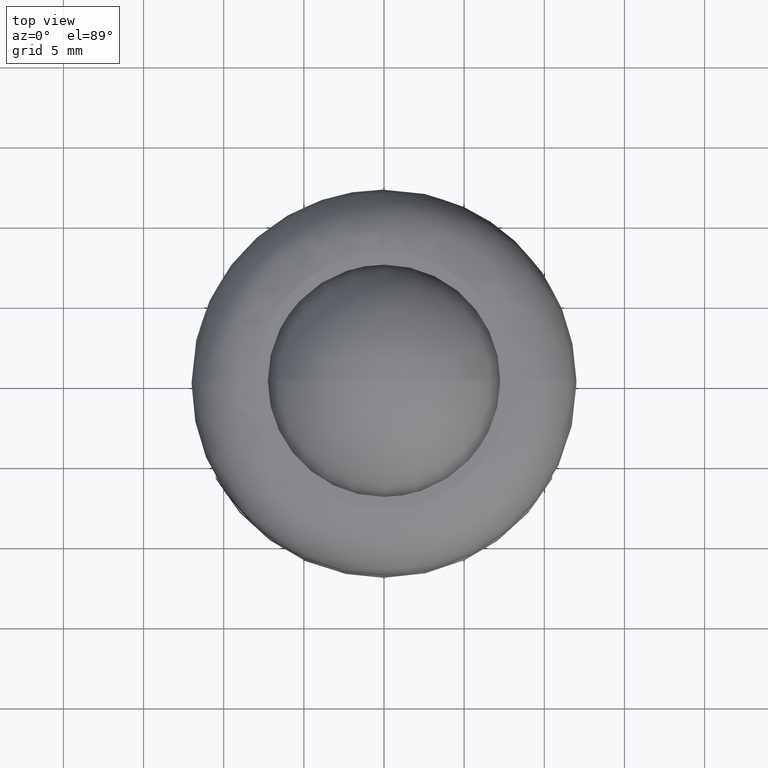
[diagram: clean part render]
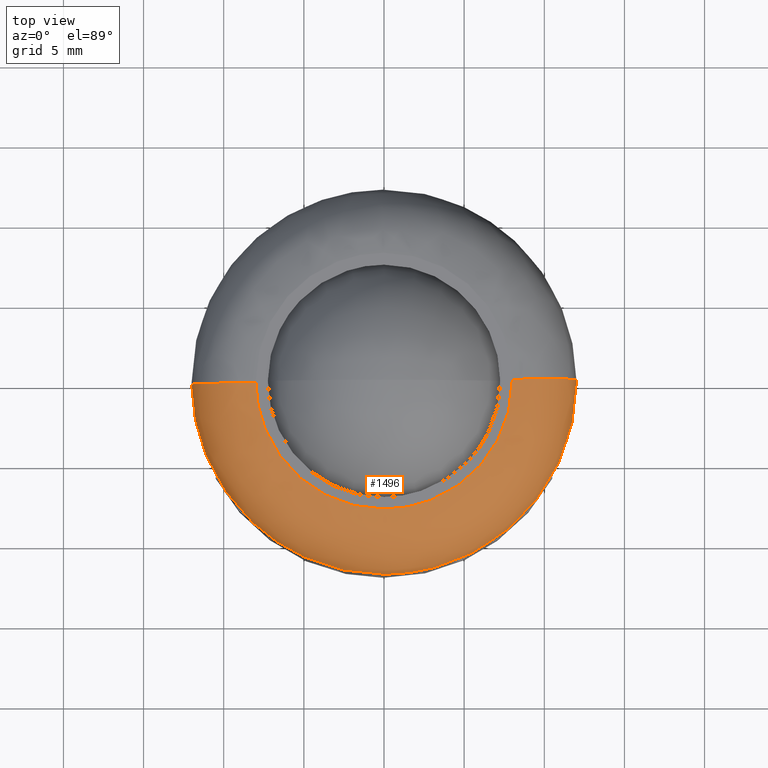
[diagram: same view with one face highlighted and labeled with its STEP entity id]
A machine part, top view. The second image highlights one B-rep face of the part: STEP entity #1496.
In plain terms, the highlighted face is a freeform B-spline surface patch.
Its self-contained STEP definition (entity closure, byte-faithful):
#1086=CARTESIAN_POINT('',(-7.999368353823391,-0.100528319104922,12.0));
#1087=VERTEX_POINT('',#1086);
#1095=CARTESIAN_POINT('',(0.050258764031957,-7.999842126982739,12.0));
#1096=VERTEX_POINT('',#1095);
#1097=CARTESIAN_POINT('',(0.050258764031957,-7.999842126982739,12.0));
#1098=CARTESIAN_POINT('',(-0.291969692002958,-8.002001624722414,12.0));
#1099=CARTESIAN_POINT('',(-1.009308690898889,-7.960417831828395,12.000000000000011));
#1100=CARTESIAN_POINT('',(-2.147877280366271,-7.738725314529022,11.999999999999950));
#1101=CARTESIAN_POINT('',(-3.240442216491117,-7.345918888468682,12.000000000000160));
#1102=CARTESIAN_POINT('',(-4.291294910956784,-6.782969535053945,11.999999999999790));
#1103=CARTESIAN_POINT('',(-5.319696521452464,-6.029499938841547,12.000000000000171));
#1104=CARTESIAN_POINT('',(-6.237553441284248,-5.072000818602808,12.000000000000030));
#1105=CARTESIAN_POINT('',(-6.895158595428486,-4.096394659710724,11.999999999999940));
#1106=CARTESIAN_POINT('',(-7.376359571363047,-3.151259520485609,12.000000000000190));
#1107=CARTESIAN_POINT('',(-7.680921348950090,-2.305472377029266,11.999999999999950));
#1108=CARTESIAN_POINT('',(-7.926310511984541,-1.240471974038401,12.0));
#1109=CARTESIAN_POINT('',(-7.993671507442953,-0.556807913680777,12.000000000000011));
#1110=CARTESIAN_POINT('',(-7.999368353823391,-0.100528319104922,12.0));
#1111=B_SPLINE_CURVE_WITH_KNOTS('',3,(#1097,#1098,#1099,#1100,#1101,#1102,#1103,#1104,#1105,#1106,#1107,#1108,#1109,#1110),.UNSPECIFIED.,.F.,.U.,(4,1,1,1,1,1,1,1,1,1,1,4),(0.000000032343642,1.026706891044071,2.151201481715830,3.471268425500442,4.497982534330774,5.720274910603725,7.284759213213086,8.458154736016571,9.240414605485842,10.462700141200481,11.147179417200739,12.516118221549579),.UNSPECIFIED.);
#1112=EDGE_CURVE('',#1096,#1087,#1111,.T.);
#1114=CARTESIAN_POINT('',(8.0,0.0,12.0));
#1115=VERTEX_POINT('',#1114);
#1116=CARTESIAN_POINT('',(8.0,0.0,12.0));
#1117=CARTESIAN_POINT('',(8.000007600070280,-0.342235364035424,12.0));
#1118=CARTESIAN_POINT('',(7.952872440890642,-1.075597087077423,12.000000000000011));
#1119=CARTESIAN_POINT('',(7.691091632250863,-2.356401361394689,11.999999999999959));
#1120=CARTESIAN_POINT('',(7.171812730929088,-3.649187877849604,12.000000000000030));
#1121=CARTESIAN_POINT('',(6.450150170503080,-4.778970361939138,11.999999999999959));
#1122=CARTESIAN_POINT('',(5.660638851825850,-5.693878554737453,12.000000000000011));
#1123=CARTESIAN_POINT('',(4.831300056676323,-6.409815986532683,12.000000000000030));
#1124=CARTESIAN_POINT('',(3.897673977444101,-7.010298109555170,11.999999999999940));
#1125=CARTESIAN_POINT('',(2.807380275182842,-7.532101224692839,12.000000000000080));
#1126=CARTESIAN_POINT('',(1.500126976867151,-7.905486006509801,12.0));
#1127=CARTESIAN_POINT('',(0.506562304105791,-7.997003475008324,11.999999999999920));
#1128=CARTESIAN_POINT('',(0.050258764031957,-7.999842126982739,12.0));
#1129=B_SPLINE_CURVE_WITH_KNOTS('',3,(#1116,#1117,#1118,#1119,#1120,#1121,#1122,#1123,#1124,#1125,#1126,#1127,#1128),.UNSPECIFIED.,.F.,.U.,(4,1,1,1,1,1,1,1,1,1,4),(0.000000032334984,1.026707938994770,2.200099898308638,3.911291691568414,5.182463448415021,6.209194250977256,7.529226238229244,8.458163369469572,9.533772472657008,11.147190795456609,12.516130997089990),.UNSPECIFIED.);
#1130=EDGE_CURVE('',#1115,#1096,#1129,.T.);
#1132=CARTESIAN_POINT('',(7.999368353823392,0.100528319104922,12.0));
#1133=VERTEX_POINT('',#1132);
#1134=CARTESIAN_POINT('',(7.999368353823392,0.100528319104922,12.0));
#1135=CARTESIAN_POINT('',(8.0,0.0,12.0));
#1136=QUASI_UNIFORM_CURVE('',1,(#1134,#1135),.UNSPECIFIED.,.F.,.U.);
#1137=EDGE_CURVE('',#1133,#1115,#1136,.T.);
#1318=CARTESIAN_POINT('',(-11.999052530445731,-0.150792478605392,8.000000000027146));
#1319=VERTEX_POINT('',#1318);
#1327=CARTESIAN_POINT('',(-7.999368353823391,-0.100528319104922,12.0));
#1328=CARTESIAN_POINT('',(-8.342962410215186,-0.104846276647689,12.000095323297501));
#1329=CARTESIAN_POINT('',(-8.866461927407165,-0.111425111894558,11.932102792538100));
#1330=CARTESIAN_POINT('',(-9.658972357540556,-0.121384615924115,11.664874699634479));
#1331=CARTESIAN_POINT('',(-10.263017489297569,-0.128975670495285,11.327558966083330));
#1332=CARTESIAN_POINT('',(-10.802763836428390,-0.135758680174363,10.873283196431361));
#1333=CARTESIAN_POINT('',(-11.226599525818949,-0.141085036894524,10.393947392586419));
#1334=CARTESIAN_POINT('',(-11.600937792874999,-0.145789357917914,9.794707626542314));
#1335=CARTESIAN_POINT('',(-11.914523186428539,-0.149730195627826,8.981686647882516));
#1336=CARTESIAN_POINT('',(-11.999182605205080,-0.150794113260444,8.359987217605760));
#1337=CARTESIAN_POINT('',(-11.999052530445731,-0.150792478605392,8.000000000027146));
#1338=B_SPLINE_CURVE_WITH_KNOTS('',3,(#1327,#1328,#1329,#1330,#1331,#1332,#1333,#1334,#1335,#1336,#1337),.UNSPECIFIED.,.F.,.U.,(4,1,1,1,1,1,1,1,4),(0.000000036555487,1.030836140948819,1.570806485872057,2.503474080192615,3.092534708587933,3.681566731997817,4.417888286750750,5.203301434479204,6.283224731377064),.UNSPECIFIED.);
#1339=EDGE_CURVE('',#1087,#1319,#1338,.T.);
#1344=CARTESIAN_POINT('',(11.999052530445731,0.150792478605389,8.000000000027146));
#1345=VERTEX_POINT('',#1344);
#1346=CARTESIAN_POINT('',(7.999368353823392,0.100528319104922,12.0));
#1347=CARTESIAN_POINT('',(8.277510969532894,0.104023746290363,12.000044917984530));
#1348=CARTESIAN_POINT('',(8.768326056357909,0.110191835251063,11.948577411442750));
#1349=CARTESIAN_POINT('',(9.507906629107483,0.119486168062976,11.729181560388890));
#1350=CARTESIAN_POINT('',(10.211035851882849,0.128322415588427,11.369845856622080));
#1351=CARTESIAN_POINT('',(10.834535867003771,0.136157960303049,10.858089575499321));
#1352=CARTESIAN_POINT('',(11.282462506971740,0.141787068772652,10.312173360275970));
#1353=CARTESIAN_POINT('',(11.591197006470070,0.145666945142273,9.789803113783098));
#1354=CARTESIAN_POINT('',(11.804655773551250,0.148349488322418,9.274424473865977));
#1355=CARTESIAN_POINT('',(11.959770431995430,0.150298819214999,8.670847176863019));
#1356=CARTESIAN_POINT('',(11.999080362766790,0.150792828375998,8.245435044323866));
#1357=CARTESIAN_POINT('',(11.999052530445731,0.150792478605389,8.000000000027146));
#1358=B_SPLINE_CURVE_WITH_KNOTS('',3,(#1346,#1347,#1348,#1349,#1350,#1351,#1352,#1353,#1354,#1355,#1356,#1357),.UNSPECIFIED.,.F.,.U.,(4,1,1,1,1,1,1,1,1,4),(0.000000036555597,0.834488792738630,1.472629725031909,2.307130195203954,3.190689607629558,3.877916194188229,4.417888286750817,5.006948828580751,5.546920921143375,6.283224731377062),.UNSPECIFIED.);
#1359=EDGE_CURVE('',#1133,#1345,#1358,.T.);
#1410=CARTESIAN_POINT('',(7.718529196598790,0.312893830506306,11.990317465230838));
#1411=CARTESIAN_POINT('',(7.719877661868822,0.205592022347169,11.990317465230833));
#1412=CARTESIAN_POINT('',(7.818275020700975,-7.624208830083408,11.990317465230840));
#1413=CARTESIAN_POINT('',(0.097033095308784,-7.721241925392193,11.990317465230842));
#1414=CARTESIAN_POINT('',(-7.624208830083408,-7.818275020700975,11.990317465230840));
#1415=CARTESIAN_POINT('',(-7.722606188915330,0.011525831710936,11.990317465230836));
#1416=CARTESIAN_POINT('',(-7.723954654185133,0.118827639851837,11.990317465230838));
#1417=CARTESIAN_POINT('',(12.304852055977502,0.498814242395399,12.310148516315829));
#1418=CARTESIAN_POINT('',(12.307001774560895,0.327754077808749,12.310148516315831));
#1419=CARTESIAN_POINT('',(12.463866497397222,-12.154486859930985,12.310148516315826));
#1420=CARTESIAN_POINT('',(0.154689818733118,-12.309176678664105,12.310148516315829));
#1421=CARTESIAN_POINT('',(-12.154486859930980,-12.463866497397222,12.310148516315826));
#1422=CARTESIAN_POINT('',(-12.311351582766944,0.018374440312754,12.310148516315831));
#1423=CARTESIAN_POINT('',(-12.313501301349969,0.189434604870335,12.310148516315831));
#1424=CARTESIAN_POINT('',(11.985158488189128,0.485854500653719,7.721851499298784));
#1425=CARTESIAN_POINT('',(11.987252354723219,0.319238666976079,7.721851499298785));
#1426=CARTESIAN_POINT('',(12.140041559814554,-11.838699945044787,7.721851499298786));
#1427=CARTESIAN_POINT('',(0.150670807384883,-11.989370752429672,7.721851499298785));
#1428=CARTESIAN_POINT('',(-11.838699945044787,-12.140041559814554,7.721851499298786));
#1429=CARTESIAN_POINT('',(-11.991489150135759,0.017897052177328,7.721851499298785));
#1430=CARTESIAN_POINT('',(-11.993583016669495,0.184512885826654,7.721851499298785));
#1438=(BOUNDED_SURFACE()B_SPLINE_SURFACE(2,2,((#1410,#1417,#1424),(#1411,#1418,#1425),(#1412,#1419,#1426),(#1413,#1420,#1427),(#1414,#1421,#1428),(#1415,#1422,#1429),(#1416,#1423,#1430)),.UNSPECIFIED.,.F.,.F.,.U.)B_SPLINE_SURFACE_WITH_KNOTS((3,1,2,1,3),(3,3),(0.0,0.397324168707364,20.263532600914040,40.129741033120723,40.527065201759363),(0.0,7.290919857939078),.UNSPECIFIED.)GEOMETRIC_REPRESENTATION_ITEM()RATIONAL_B_SPLINE_SURFACE(((0.927077710675016,0.608371547716606,0.927077722427978),(0.921709902957975,0.604849058230494,0.921709914642887),(0.647951709431553,0.425202094466791,0.647951717645915),(0.916342095240933,0.601326568744382,0.916342106857795),(0.647951709431553,0.425202094466791,0.647951717645915),(0.921709902957046,0.604849058229885,0.921709914641958),(0.927077710673160,0.608371547715388,0.927077722426122)))REPRESENTATION_ITEM('')SURFACE());
#1439=CARTESIAN_POINT('',(-8.150221700225480,-8.807603887390352,8.000000000022855));
#1440=VERTEX_POINT('',#1439);
#1441=CARTESIAN_POINT('',(-8.150221700225480,-8.807603887390352,8.000000000022855));
#1442=CARTESIAN_POINT('',(-8.578379779996796,-8.411440632024158,8.000000000023343));
#1443=CARTESIAN_POINT('',(-9.394105583839245,-7.537916424459702,8.000000000024254));
#1444=CARTESIAN_POINT('',(-10.474806048300019,-5.965906358288535,8.000000000025466));
#1445=CARTESIAN_POINT('',(-11.305226527894799,-4.189889297667122,8.000000000026397));
#1446=CARTESIAN_POINT('',(-11.853572055725881,-2.203413464478429,8.000000000026962));
#1447=CARTESIAN_POINT('',(-11.990199537386211,-0.860872667996124,8.000000000027201));
#1448=CARTESIAN_POINT('',(-11.999052530445731,-0.150792478605392,8.000000000027146));
#1449=B_SPLINE_CURVE_WITH_KNOTS('',3,(#1441,#1442,#1443,#1444,#1445,#1446,#1447,#1448),.UNSPECIFIED.,.F.,.U.,(4,1,1,1,1,4),(7.575011E-009,1.749967132319986,3.576027367318932,5.706415258213126,7.608558895563769,9.738953557923329),.UNSPECIFIED.);
#1450=EDGE_CURVE('',#1440,#1319,#1449,.T.);
#1451=ORIENTED_EDGE('',*,*,#1450,.F.);
#1452=CARTESIAN_POINT('',(0.075388707493014,-11.999763186945930,8.000000000013573));
#1453=VERTEX_POINT('',#1452);
#1454=CARTESIAN_POINT('',(0.075388707493014,-11.999763186945930,8.000000000013573));
#1455=CARTESIAN_POINT('',(-0.654006143706912,-12.004420671418620,8.000000000014389));
#1456=CARTESIAN_POINT('',(-2.090061988687813,-11.882100078422290,8.000000000016041));
#1457=CARTESIAN_POINT('',(-3.959715974021001,-11.376134511166679,8.000000000018083));
#1458=CARTESIAN_POINT('',(-5.578183753002072,-10.664351549641220,8.000000000019991));
#1459=CARTESIAN_POINT('',(-6.928254911870231,-9.842816120790843,8.000000000021464));
#1460=CARTESIAN_POINT('',(-7.770299474572687,-9.159189611917725,8.000000000022439));
#1461=CARTESIAN_POINT('',(-8.150221700225480,-8.807603887390352,8.000000000022855));
#1462=B_SPLINE_CURVE_WITH_KNOTS('',3,(#1454,#1455,#1456,#1457,#1458,#1459,#1460,#1461),.UNSPECIFIED.,.F.,.U.,(4,1,1,1,1,4),(6.516924E-009,2.188218474336869,4.305852175168417,5.788186343362224,7.482296806935814,9.035224458819268),.UNSPECIFIED.);
#1463=EDGE_CURVE('',#1453,#1440,#1462,.T.);
#1464=ORIENTED_EDGE('',*,*,#1463,.F.);
#1465=CARTESIAN_POINT('',(12.0,0.0,8.0));
#1466=VERTEX_POINT('',#1465);
#1467=CARTESIAN_POINT('',(12.0,0.0,8.0));
#1468=CARTESIAN_POINT('',(12.000011407299761,-0.464460527943945,7.999999999999996));
#1469=CARTESIAN_POINT('',(11.944574154417831,-1.417829200938180,8.000000000000075));
#1470=CARTESIAN_POINT('',(11.646717356755239,-3.081269613846734,8.000000000000437));
#1471=CARTESIAN_POINT('',(11.010339249505590,-4.939191326549644,8.000000000001135));
#1472=CARTESIAN_POINT('',(10.021730813442479,-6.692677011159688,8.000000000002276));
#1473=CARTESIAN_POINT('',(8.984140381373127,-7.996191150020853,8.000000000003505));
#1474=CARTESIAN_POINT('',(7.890624607577387,-9.083254134527977,8.000000000004560));
#1475=CARTESIAN_POINT('',(6.687158894716961,-10.011801255502739,8.000000000006482));
#1476=CARTESIAN_POINT('',(5.409165312356457,-10.737705629668360,8.000000000007132));
#1477=CARTESIAN_POINT('',(4.129871356913888,-11.293162639923990,8.000000000009255));
#1478=CARTESIAN_POINT('',(2.421013081692573,-11.821149636838200,8.000000000010548));
#1479=CARTESIAN_POINT('',(0.979871315033733,-11.994268001263301,8.000000000012932));
#1480=CARTESIAN_POINT('',(0.075388707493014,-11.999763186945930,8.000000000013573));
#1481=B_SPLINE_CURVE_WITH_KNOTS('',3,(#1467,#1468,#1469,#1470,#1471,#1472,#1473,#1474,#1475,#1476,#1477,#1478,#1479,#1480),.UNSPECIFIED.,.F.,.U.,(4,1,1,1,1,1,1,1,1,1,1,4),(0.000000026535375,1.393382668926854,2.860122857525321,5.060234315766738,7.260335007608569,8.873749474419734,10.047110052082751,11.880536035670460,13.420614786120391,14.447330572144489,16.060747338141759,18.774195934235760),.UNSPECIFIED.);
#1482=EDGE_CURVE('',#1466,#1453,#1481,.T.);
#1483=ORIENTED_EDGE('',*,*,#1482,.F.);
#1484=CARTESIAN_POINT('',(11.999052530445731,0.150792478605389,8.000000000027146));
#1485=CARTESIAN_POINT('',(12.0,0.0,8.0));
#1486=QUASI_UNIFORM_CURVE('',1,(#1484,#1485),.UNSPECIFIED.,.F.,.U.);
#1487=EDGE_CURVE('',#1345,#1466,#1486,.T.);
#1488=ORIENTED_EDGE('',*,*,#1487,.F.);
#1489=ORIENTED_EDGE('',*,*,#1359,.F.);
#1490=ORIENTED_EDGE('',*,*,#1137,.T.);
#1491=ORIENTED_EDGE('',*,*,#1130,.T.);
#1492=ORIENTED_EDGE('',*,*,#1112,.T.);
#1493=ORIENTED_EDGE('',*,*,#1339,.T.);
#1494=EDGE_LOOP('',(#1451,#1464,#1483,#1488,#1489,#1490,#1491,#1492,#1493));
#1495=FACE_OUTER_BOUND('',#1494,.T.);
#1496=ADVANCED_FACE('',(#1495),#1438,.T.);